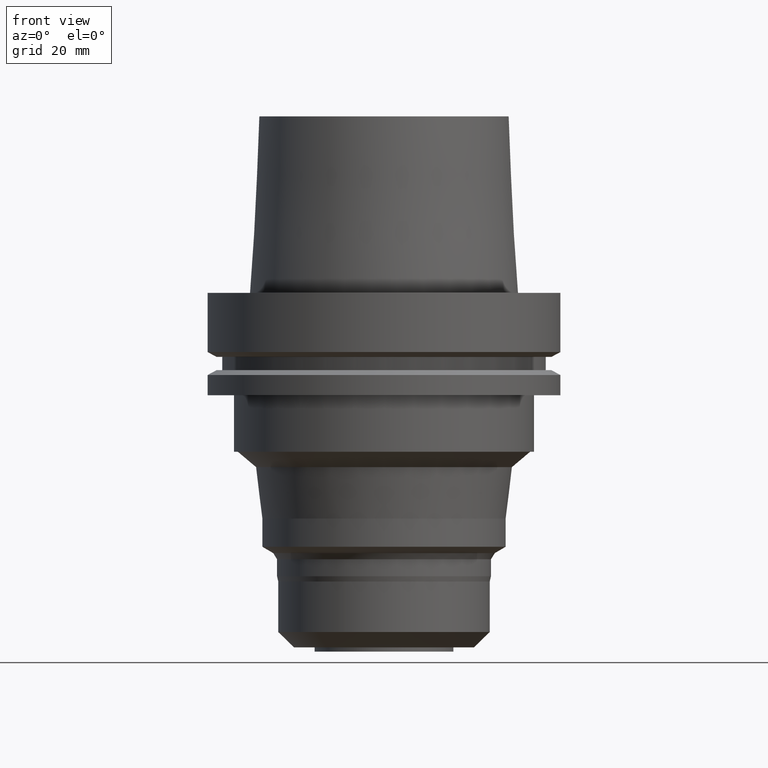
[diagram: clean part render]
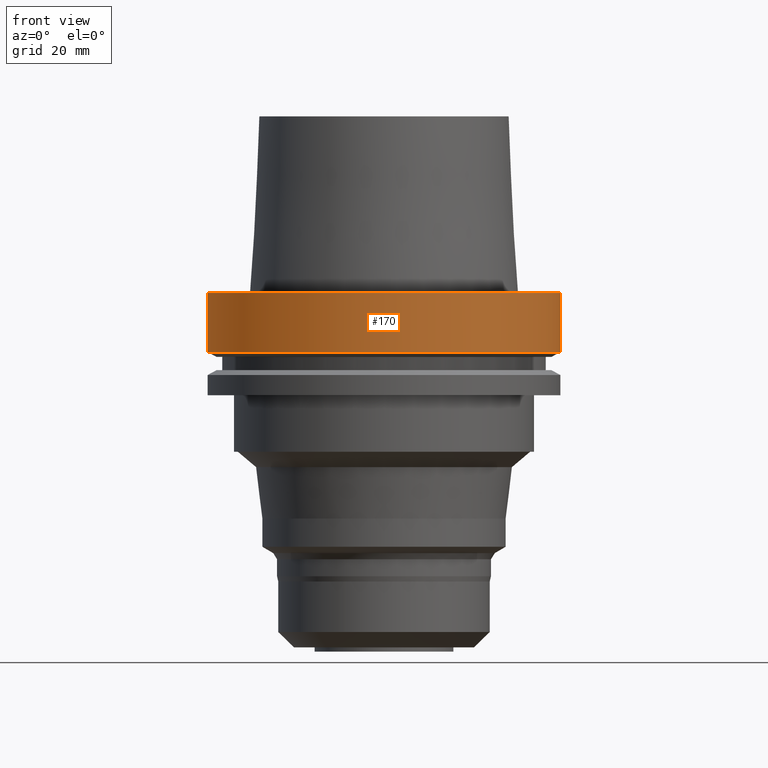
[diagram: same view with one face highlighted and labeled with its STEP entity id]
A machine part, front view. The second image highlights one B-rep face of the part: STEP entity #170.
In plain terms, the highlighted cylindrical surface (bore or boss wall) has radius 50 mm, axis along (0, 0, -1).
Its self-contained STEP definition (entity closure, byte-faithful):
#106=EDGE_CURVE('Unnamed[1]',#268,#268,#269,.T.);
#152=EDGE_CURVE('Unnamed[1]',#341,#341,#342,.T.);
#170=ADVANCED_FACE('Unnamed[1]',(#368,#369),#370,.T.);
#268=VERTEX_POINT('',#485);
#269=CIRCLE('',#486,50.0000000000001);
#341=VERTEX_POINT('',#576);
#342=CIRCLE('',#577,50.0000000000001);
#368=FACE_BOUND('',#611,.T.);
#369=FACE_BOUND('',#612,.T.);
#370=CYLINDRICAL_SURFACE('',#613,50.0000000000001);
#485=CARTESIAN_POINT('',(1.02578894188643E-015,50.0,-16.7524047358083));
#486=AXIS2_PLACEMENT_3D('',#727,#728,#729);
#576=CARTESIAN_POINT('',(-6.16297582203916E-031,50.0,6.12323399573677E-015));
#577=AXIS2_PLACEMENT_3D('',#810,#811,#812);
#611=EDGE_LOOP('',(#838));
#612=EDGE_LOOP('',(#839));
#613=AXIS2_PLACEMENT_3D('',#840,#841,#842);
#727=CARTESIAN_POINT('',(1.02578894188643E-015,-3.79665783282051E-014,-16.7524047358084));
#728=DIRECTION('',(6.12323399573677E-017,5.75940563219809E-016,-1.0));
#729=DIRECTION('',(-4.00933410930822E-032,1.0,5.75940563219809E-016));
#810=CARTESIAN_POINT('',(1.74032777401202E-030,-4.76149677470327E-014,-2.8421709430404E-014));
#811=DIRECTION('',(6.12323399573677E-017,5.75940563219809E-016,-1.0));
#812=DIRECTION('',(-4.00933410930822E-032,1.0,5.75940563219809E-016));
#838=ORIENTED_EDGE('',*,*,#106,.F.);
#839=ORIENTED_EDGE('',*,*,#152,.T.);
#840=CARTESIAN_POINT('',(5.12894470943218E-016,-4.27907730376189E-014,-8.3762023679042));
#841=DIRECTION('',(6.12323399573677E-017,5.75940563219809E-016,-1.0));
#842=DIRECTION('',(-4.00933410930822E-032,1.0,5.75940563219809E-016));